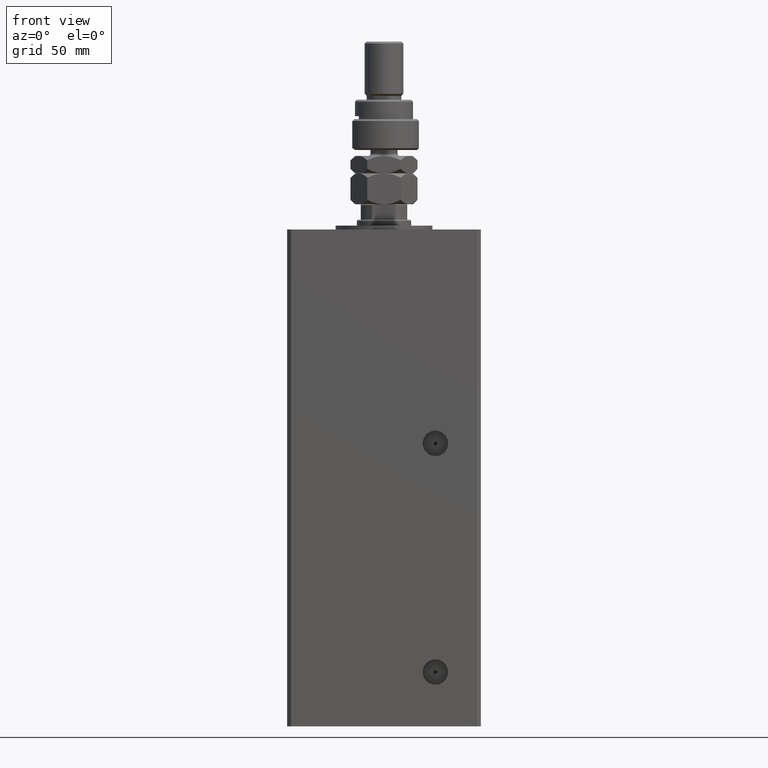
[diagram: clean part render]
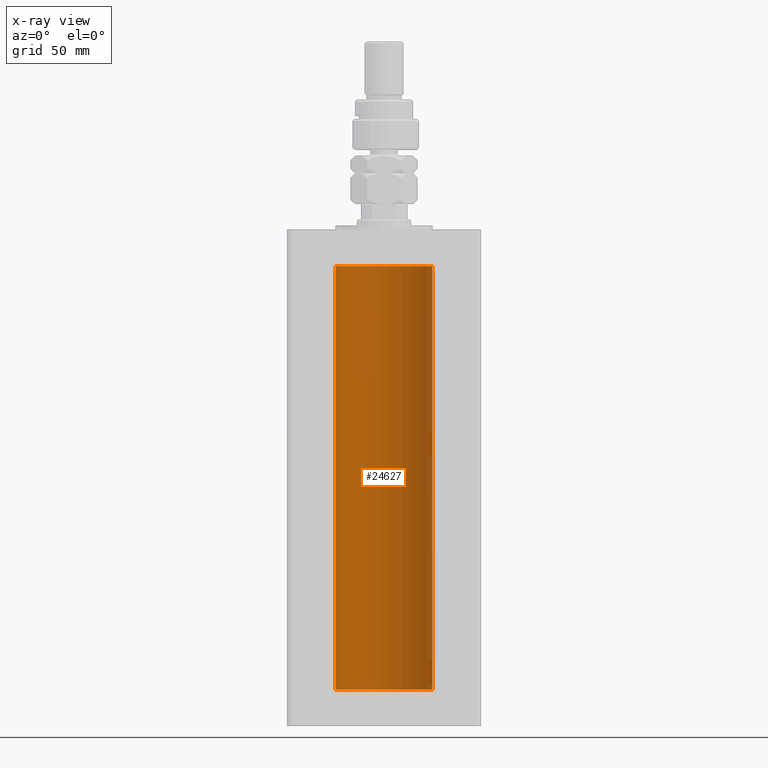
[diagram: x-ray — body ghosted, one internal face saturated and labeled with its STEP entity id]
A machine part, front view, then the same camera in x-ray: the body is ghosted and one INTERNAL B-rep face — a face not visible from any outside direction — is saturated and labeled: STEP entity #24627.
In plain terms, the highlighted cylindrical surface (partial cylindrical patch) has radius 25 mm, axis along (-0, -0, -1).
Its self-contained STEP definition (entity closure, byte-faithful):
#276 = CIRCLE ( 'NONE', #10893, 25.00000000000000000 ) ;
#2424 = DIRECTION ( 'NONE',  ( -0.000000000000000000, -0.000000000000000000, -1.000000000000000000 ) ) ;
#4981 = CIRCLE ( 'NONE', #18277, 25.00000000000000000 ) ;
#6585 = FACE_OUTER_BOUND ( 'NONE', #50768, .T. ) ;
#7661 = ORIENTED_EDGE ( 'NONE', *, *, #30342, .T. ) ;
#7728 = DIRECTION ( 'NONE',  ( 1.000000000000000000, 0.000000000000000000, 0.000000000000000000 ) ) ;
#8079 = AXIS2_PLACEMENT_3D ( 'NONE', #49144, #2424, #40797 ) ;
#8147 = DIRECTION ( 'NONE',  ( 1.000000000000000000, 0.000000000000000000, 0.000000000000000000 ) ) ;
#8613 = CARTESIAN_POINT ( 'NONE',  ( 25.00000000000000000, 3.061616997868383043E-15, 218.5000000000000000 ) ) ;
#10893 = AXIS2_PLACEMENT_3D ( 'NONE', #53794, #50149, #8147 ) ;
#11961 = VERTEX_POINT ( 'NONE', #24265 ) ;
#15906 = VERTEX_POINT ( 'NONE', #29402 ) ;
#16983 = VERTEX_POINT ( 'NONE', #22376 ) ;
#18277 = AXIS2_PLACEMENT_3D ( 'NONE', #28593, #37221, #7728 ) ;
#19667 = CYLINDRICAL_SURFACE ( 'NONE', #8079, 25.00000000000000000 ) ;
#22170 = ORIENTED_EDGE ( 'NONE', *, *, #26521, .F. ) ;
#22376 = CARTESIAN_POINT ( 'NONE',  ( -25.00000000000000000, 0.000000000000000000, 0.000000000000000000 ) ) ;
#24265 = CARTESIAN_POINT ( 'NONE',  ( 25.00000000000000000, 3.061616997868383043E-15, 0.000000000000000000 ) ) ;
#24627 = ADVANCED_FACE ( 'NONE', ( #6585 ), #19667, .F. ) ;
#26521 = EDGE_CURVE ( 'NONE', #15906, #11961, #45888, .T. ) ;
#28593 = CARTESIAN_POINT ( 'NONE',  ( 0.000000000000000000, 0.000000000000000000, 0.000000000000000000 ) ) ;
#29402 = CARTESIAN_POINT ( 'NONE',  ( 25.00000000000000000, 3.061616997868383043E-15, 218.5000000000000000 ) ) ;
#30342 = EDGE_CURVE ( 'NONE', #15906, #36634, #276, .T. ) ;
#32977 = CARTESIAN_POINT ( 'NONE',  ( -25.00000000000000000, 0.000000000000000000, 218.5000000000000000 ) ) ;
#33805 = DIRECTION ( 'NONE',  ( -0.000000000000000000, -0.000000000000000000, -1.000000000000000000 ) ) ;
#36634 = VERTEX_POINT ( 'NONE', #50561 ) ;
#37221 = DIRECTION ( 'NONE',  ( -0.000000000000000000, 0.000000000000000000, 1.000000000000000000 ) ) ;
#40797 = DIRECTION ( 'NONE',  ( -1.000000000000000000, 0.000000000000000000, 0.000000000000000000 ) ) ;
#40995 = VECTOR ( 'NONE', #54803, 1000.000000000000000 ) ;
#43745 = ORIENTED_EDGE ( 'NONE', *, *, #52437, .F. ) ;
#45888 = LINE ( 'NONE', #8613, #40995 ) ;
#49144 = CARTESIAN_POINT ( 'NONE',  ( 0.000000000000000000, 0.000000000000000000, 218.5000000000000000 ) ) ;
#49318 = VECTOR ( 'NONE', #33805, 1000.000000000000000 ) ;
#49619 = ORIENTED_EDGE ( 'NONE', *, *, #54864, .T. ) ;
#50149 = DIRECTION ( 'NONE',  ( -0.000000000000000000, 0.000000000000000000, 1.000000000000000000 ) ) ;
#50561 = CARTESIAN_POINT ( 'NONE',  ( -25.00000000000000000, 0.000000000000000000, 218.5000000000000000 ) ) ;
#50768 = EDGE_LOOP ( 'NONE', ( #22170, #7661, #49619, #43745 ) ) ;
#52437 = EDGE_CURVE ( 'NONE', #11961, #16983, #4981, .T. ) ;
#53794 = CARTESIAN_POINT ( 'NONE',  ( 0.000000000000000000, 0.000000000000000000, 218.5000000000000000 ) ) ;
#54803 = DIRECTION ( 'NONE',  ( -0.000000000000000000, -0.000000000000000000, -1.000000000000000000 ) ) ;
#54864 = EDGE_CURVE ( 'NONE', #36634, #16983, #54955, .T. ) ;
#54955 = LINE ( 'NONE', #32977, #49318 ) ;